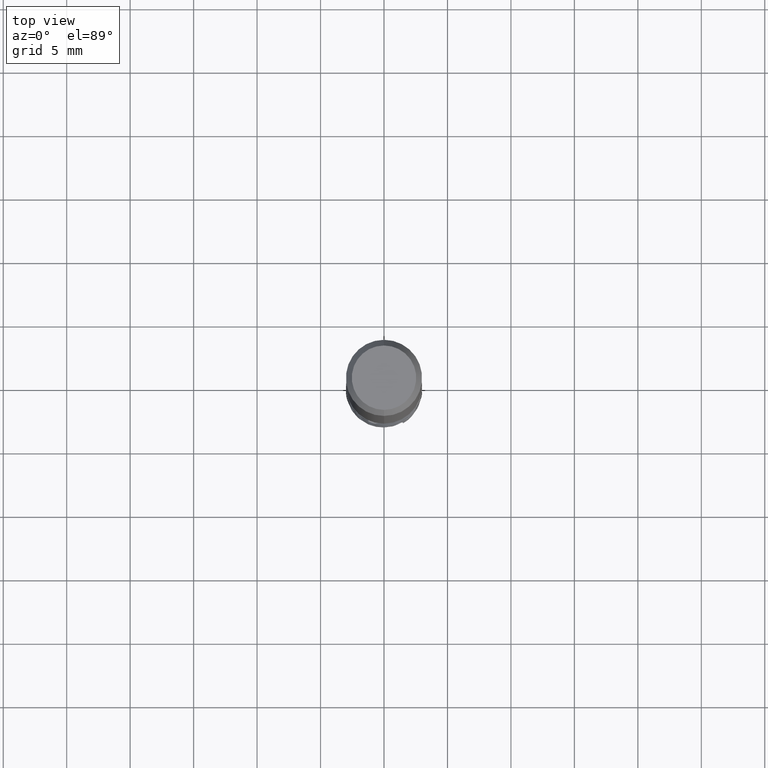
[diagram: clean part render]
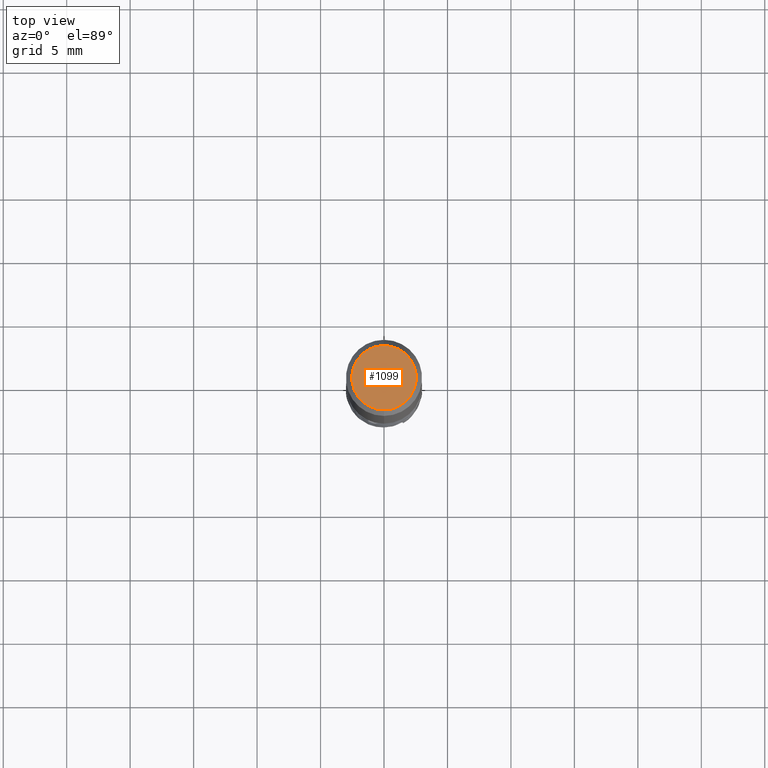
[diagram: same view with one face highlighted and labeled with its STEP entity id]
A machine part, top view. The second image highlights one B-rep face of the part: STEP entity #1099.
In plain terms, the highlighted planar face has unit normal (-0, 0, 1).
Its self-contained STEP definition (entity closure, byte-faithful):
#881=EDGE_CURVE('',#983,#959,#1787,.T.);
#959=VERTEX_POINT('',#1873);
#983=VERTEX_POINT('',#1898);
#1099=ADVANCED_FACE('',(#2020),#2021,.T.);
#1125=EDGE_CURVE('',#959,#983,#2051,.T.);
#1787=CIRCLE('',#6105,2.5381197846483);
#1873=CARTESIAN_POINT('',(3.10819761504259E-016,-2.5381197846483,0.0));
#1898=CARTESIAN_POINT('',(0.0,2.5381197846483,0.0));
#2020=FACE_OUTER_BOUND('',#7598,.T.);
#2021=PLANE('',#7599);
#2051=CIRCLE('',#8015,2.5381197846483);
#6105=AXIS2_PLACEMENT_3D('',#10385,#10386,#10387);
#7598=EDGE_LOOP('',(#10573,#10574));
#7599=AXIS2_PLACEMENT_3D('',#10575,#10576,#10577);
#8015=AXIS2_PLACEMENT_3D('',#10621,#10622,#10623);
#10385=CARTESIAN_POINT('',(0.0,0.0,0.0));
#10386=DIRECTION('',(0.0,0.0,-1.0));
#10387=DIRECTION('',(0.0,1.0,0.0));
#10573=ORIENTED_EDGE('',*,*,#881,.F.);
#10574=ORIENTED_EDGE('',*,*,#1125,.F.);
#10575=CARTESIAN_POINT('',(0.0,1.26905989232415,0.0));
#10576=DIRECTION('',(-0.0,0.0,1.0));
#10577=DIRECTION('',(0.0,-1.0,0.0));
#10621=CARTESIAN_POINT('',(0.0,0.0,0.0));
#10622=DIRECTION('',(0.0,0.0,-1.0));
#10623=DIRECTION('',(0.0,1.0,0.0));